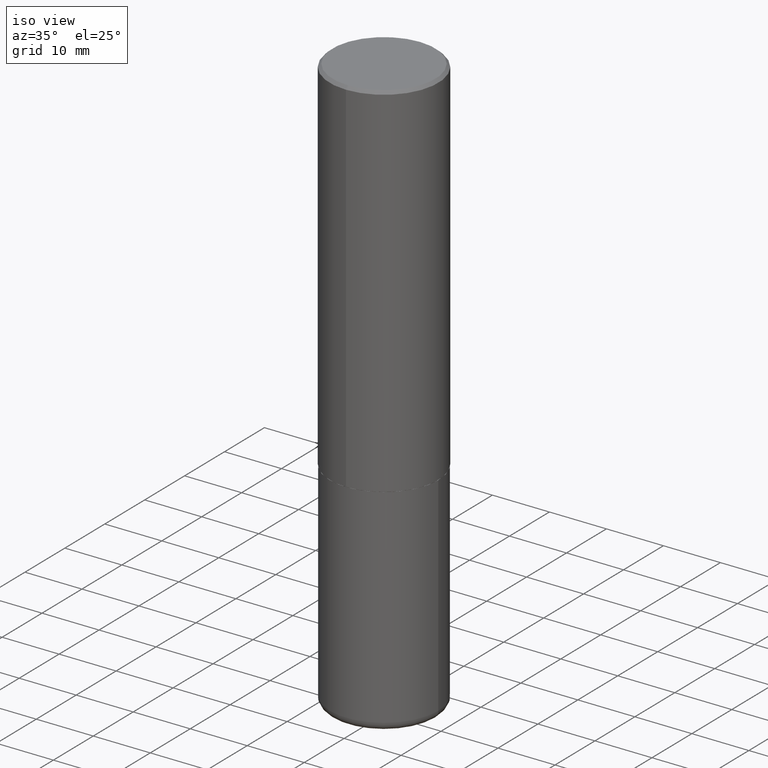
[diagram: clean part render]
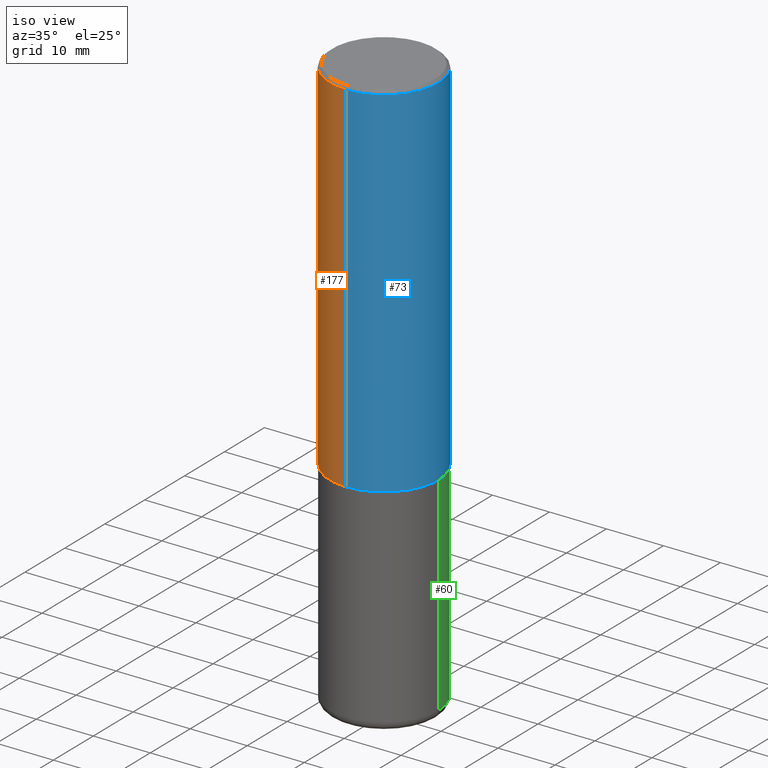
[diagram: same view with three faces highlighted in distinct colors, each labeled with its STEP entity id]
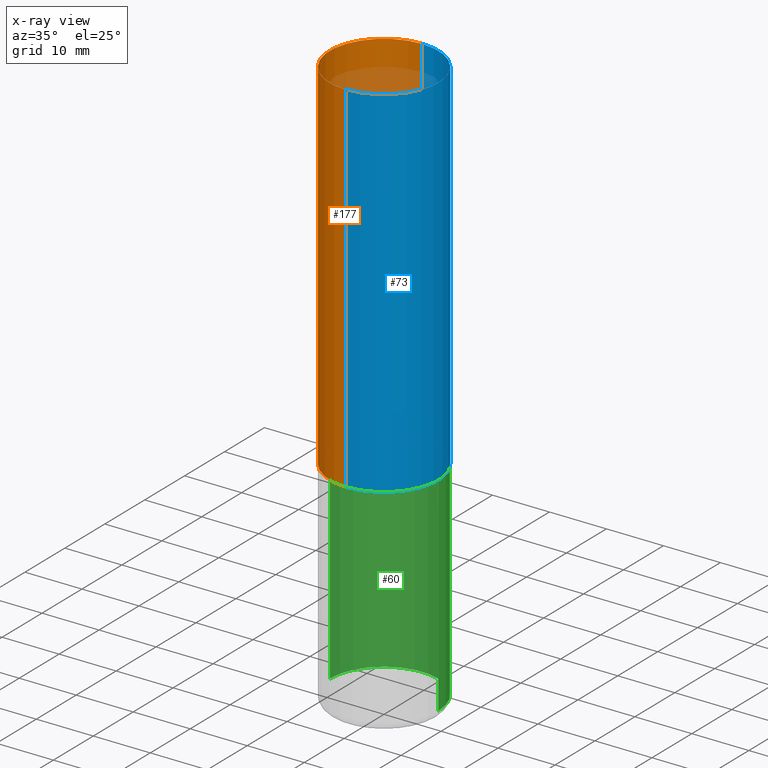
[diagram: x-ray of the same camera — body ghosted, the three highlighted faces saturated]
A machine part, iso view with three faces highlighted in distinct colors.
The next image is the same camera in x-ray (body ghosted, the three faces saturated) — at least one of them is partly hidden behind the body in this view.
Their STEP definitions:

[orange] entity #177 — the highlighted cylindrical surface (partial cylindrical patch) has radius 9.525 mm, axis along (-0, 0, 1).
#12 = CIRCLE ( 'NONE', #53, 0.3750000000000000555 ) ;
#13 = DIRECTION ( 'NONE',  ( -2.444946167972934928E-29, 3.492229786509738161E-15, 1.000000000000000000 ) ) ;
#14 = DIRECTION ( 'NONE',  ( -2.444946167972934928E-29, 3.492229786509738161E-15, 1.000000000000000000 ) ) ;
#30 = CARTESIAN_POINT ( 'NONE',  ( 2.664535259100376486E-15, 0.3750000000000001665, -1.309586169941152501E-15 ) ) ;
#35 = ORIENTED_EDGE ( 'NONE', *, *, #201, .F. ) ;
#36 = ORIENTED_EDGE ( 'NONE', *, *, #387, .T. ) ;
#42 = VECTOR ( 'NONE', #214, 39.37007874015748143 ) ;
#46 = CARTESIAN_POINT ( 'NONE',  ( 0.000000000000000000, 0.000000000000000000, 0.000000000000000000 ) ) ;
#53 = AXIS2_PLACEMENT_3D ( 'NONE', #56, #411, #62 ) ;
#56 = CARTESIAN_POINT ( 'NONE',  ( 4.889892335945890560E-31, -6.984459573019506053E-17, -0.02000000000000008715 ) ) ;
#62 = DIRECTION ( 'NONE',  ( -6.982962677686265922E-15, -1.000000000000000000, 3.494488891895536035E-15 ) ) ;
#81 = CYLINDRICAL_SURFACE ( 'NONE', #381, 0.3750000000000001665 ) ;
#84 = CARTESIAN_POINT ( 'NONE',  ( -2.572686749164323547E-15, -0.3750000000000001110, -0.01999999999999877570 ) ) ;
#90 = CIRCLE ( 'NONE', #302, 0.3750000000000002776 ) ;
#103 = VERTEX_POINT ( 'NONE', #238 ) ;
#112 = DIRECTION ( 'NONE',  ( -6.982962677686266711E-15, -1.000000000000000000, 2.913971193241878794E-15 ) ) ;
#128 = CARTESIAN_POINT ( 'NONE',  ( 2.618611004132350411E-15, 0.3749999999999999445, -0.02000000000000139513 ) ) ;
#134 = DIRECTION ( 'NONE',  ( -2.444946167972934928E-29, 3.492229786509738161E-15, 1.000000000000000000 ) ) ;
#162 = ORIENTED_EDGE ( 'NONE', *, *, #271, .T. ) ;
#175 = EDGE_CURVE ( 'NONE', #206, #316, #322, .T. ) ;
#177 = ADVANCED_FACE ( 'NONE', ( #269 ), #81, .T. ) ;
#191 = CARTESIAN_POINT ( 'NONE',  ( -2.618611004132351200E-15, -0.3750000000000001665, 1.309586169941152501E-15 ) ) ;
#192 = EDGE_LOOP ( 'NONE', ( #340, #36, #162, #35 ) ) ;
#201 = EDGE_CURVE ( 'NONE', #316, #395, #12, .T. ) ;
#206 = VERTEX_POINT ( 'NONE', #260 ) ;
#214 = DIRECTION ( 'NONE',  ( -2.444946167972934928E-29, 3.492229786509738161E-15, 1.000000000000000000 ) ) ;
#238 = CARTESIAN_POINT ( 'NONE',  ( -2.618611004132290852E-15, -0.3750000000000090483, -2.498999999999999222 ) ) ;
#252 = LINE ( 'NONE', #191, #42 ) ;
#260 = CARTESIAN_POINT ( 'NONE',  ( 2.664535259100408040E-15, 0.3749999999999915623, -2.499000000000001442 ) ) ;
#269 = FACE_OUTER_BOUND ( 'NONE', #192, .T. ) ;
#271 = EDGE_CURVE ( 'NONE', #103, #395, #252, .T. ) ;
#282 = DIRECTION ( 'NONE',  ( -6.982962677686266711E-15, -1.000000000000000000, 3.492229786509738556E-15 ) ) ;
#299 = CARTESIAN_POINT ( 'NONE',  ( 6.109920473764365540E-29, -8.727082236487837614E-15, -2.499000000000000110 ) ) ;
#301 = VECTOR ( 'NONE', #134, 39.37007874015748143 ) ;
#302 = AXIS2_PLACEMENT_3D ( 'NONE', #299, #14, #112 ) ;
#316 = VERTEX_POINT ( 'NONE', #128 ) ;
#322 = LINE ( 'NONE', #30, #301 ) ;
#340 = ORIENTED_EDGE ( 'NONE', *, *, #175, .F. ) ;
#381 = AXIS2_PLACEMENT_3D ( 'NONE', #46, #13, #282 ) ;
#387 = EDGE_CURVE ( 'NONE', #206, #103, #90, .T. ) ;
#395 = VERTEX_POINT ( 'NONE', #84 ) ;
#411 = DIRECTION ( 'NONE',  ( -2.444946167972934928E-29, 3.492229786509738161E-15, 1.000000000000000000 ) ) ;

[blue] entity #73 — the highlighted cylindrical surface (partial cylindrical patch) has radius 9.525 mm, axis along (-0, 0, 1).
#4 = CIRCLE ( 'NONE', #330, 0.3750000000000000555 ) ;
#8 = EDGE_CURVE ( 'NONE', #395, #316, #4, .T. ) ;
#26 = CIRCLE ( 'NONE', #76, 0.3750000000000002776 ) ;
#30 = CARTESIAN_POINT ( 'NONE',  ( 2.664535259100376486E-15, 0.3750000000000001665, -1.309586169941152501E-15 ) ) ;
#32 = EDGE_LOOP ( 'NONE', ( #132, #345, #297, #275 ) ) ;
#37 = CYLINDRICAL_SURFACE ( 'NONE', #319, 0.3750000000000001665 ) ;
#42 = VECTOR ( 'NONE', #214, 39.37007874015748143 ) ;
#47 = DIRECTION ( 'NONE',  ( -2.444946167972934928E-29, 3.492229786509738161E-15, 1.000000000000000000 ) ) ;
#73 = ADVANCED_FACE ( 'NONE', ( #230 ), #37, .T. ) ;
#76 = AXIS2_PLACEMENT_3D ( 'NONE', #143, #47, #400 ) ;
#84 = CARTESIAN_POINT ( 'NONE',  ( -2.572686749164323547E-15, -0.3750000000000001110, -0.01999999999999877570 ) ) ;
#102 = EDGE_CURVE ( 'NONE', #103, #206, #26, .T. ) ;
#103 = VERTEX_POINT ( 'NONE', #238 ) ;
#128 = CARTESIAN_POINT ( 'NONE',  ( 2.618611004132350411E-15, 0.3749999999999999445, -0.02000000000000139513 ) ) ;
#129 = DIRECTION ( 'NONE',  ( -6.982962677686265922E-15, -1.000000000000000000, 3.494488891895536035E-15 ) ) ;
#132 = ORIENTED_EDGE ( 'NONE', *, *, #102, .T. ) ;
#134 = DIRECTION ( 'NONE',  ( -2.444946167972934928E-29, 3.492229786509738161E-15, 1.000000000000000000 ) ) ;
#136 = DIRECTION ( 'NONE',  ( -2.444946167972934928E-29, 3.492229786509738161E-15, 1.000000000000000000 ) ) ;
#143 = CARTESIAN_POINT ( 'NONE',  ( 6.109920473764365540E-29, -8.727082236487837614E-15, -2.499000000000000110 ) ) ;
#175 = EDGE_CURVE ( 'NONE', #206, #316, #322, .T. ) ;
#191 = CARTESIAN_POINT ( 'NONE',  ( -2.618611004132351200E-15, -0.3750000000000001665, 1.309586169941152501E-15 ) ) ;
#206 = VERTEX_POINT ( 'NONE', #260 ) ;
#214 = DIRECTION ( 'NONE',  ( -2.444946167972934928E-29, 3.492229786509738161E-15, 1.000000000000000000 ) ) ;
#230 = FACE_OUTER_BOUND ( 'NONE', #32, .T. ) ;
#238 = CARTESIAN_POINT ( 'NONE',  ( -2.618611004132290852E-15, -0.3750000000000090483, -2.498999999999999222 ) ) ;
#252 = LINE ( 'NONE', #191, #42 ) ;
#260 = CARTESIAN_POINT ( 'NONE',  ( 2.664535259100408040E-15, 0.3749999999999915623, -2.499000000000001442 ) ) ;
#271 = EDGE_CURVE ( 'NONE', #103, #395, #252, .T. ) ;
#272 = DIRECTION ( 'NONE',  ( -2.444946167972934928E-29, 3.492229786509738161E-15, 1.000000000000000000 ) ) ;
#275 = ORIENTED_EDGE ( 'NONE', *, *, #271, .F. ) ;
#297 = ORIENTED_EDGE ( 'NONE', *, *, #8, .F. ) ;
#301 = VECTOR ( 'NONE', #134, 39.37007874015748143 ) ;
#316 = VERTEX_POINT ( 'NONE', #128 ) ;
#319 = AXIS2_PLACEMENT_3D ( 'NONE', #333, #272, #391 ) ;
#322 = LINE ( 'NONE', #30, #301 ) ;
#330 = AXIS2_PLACEMENT_3D ( 'NONE', #414, #136, #129 ) ;
#333 = CARTESIAN_POINT ( 'NONE',  ( 0.000000000000000000, 0.000000000000000000, 0.000000000000000000 ) ) ;
#345 = ORIENTED_EDGE ( 'NONE', *, *, #175, .T. ) ;
#391 = DIRECTION ( 'NONE',  ( -6.982962677686266711E-15, -1.000000000000000000, 3.492229786509738556E-15 ) ) ;
#395 = VERTEX_POINT ( 'NONE', #84 ) ;
#400 = DIRECTION ( 'NONE',  ( -6.982962677686266711E-15, -1.000000000000000000, 2.913971193241878794E-15 ) ) ;
#414 = CARTESIAN_POINT ( 'NONE',  ( 4.889892335945890560E-31, -6.984459573019506053E-17, -0.02000000000000008715 ) ) ;

[green] entity #60 — the highlighted cylindrical surface (partial cylindrical patch) has radius 9.525 mm, axis along (-0, 0, 1).
#11 = FACE_OUTER_BOUND ( 'NONE', #92, .T. ) ;
#29 = LINE ( 'NONE', #99, #371 ) ;
#40 = CARTESIAN_POINT ( 'NONE',  ( -0.3750000000000000555, -8.578034651974553781E-15, -2.500000000000000000 ) ) ;
#51 = ORIENTED_EDGE ( 'NONE', *, *, #118, .T. ) ;
#60 = ADVANCED_FACE ( 'NONE', ( #11 ), #401, .T. ) ;
#61 = DIRECTION ( 'NONE',  ( 1.000000000000000000, -6.982962677686264344E-15, 0.000000000000000000 ) ) ;
#79 = DIRECTION ( 'NONE',  ( 1.000000000000000000, -6.982962677686266711E-15, 0.000000000000000000 ) ) ;
#92 = EDGE_LOOP ( 'NONE', ( #51, #332, #343, #363 ) ) ;
#95 = CARTESIAN_POINT ( 'NONE',  ( 0.3750000000000000555, -1.134731435124021338E-14, -2.500000000000000000 ) ) ;
#99 = CARTESIAN_POINT ( 'NONE',  ( -0.3750000000000000555, 2.664535259100376091E-15, -1.844600658845589598E-29 ) ) ;
#111 = CIRCLE ( 'NONE', #237, 0.3750000000000000555 ) ;
#118 = EDGE_CURVE ( 'NONE', #135, #274, #183, .T. ) ;
#124 = CARTESIAN_POINT ( 'NONE',  ( 0.000000000000000000, 0.000000000000000000, 0.000000000000000000 ) ) ;
#125 = DIRECTION ( 'NONE',  ( -2.445468806185136877E-29, 3.491481338843145188E-15, 1.000000000000000000 ) ) ;
#135 = VERTEX_POINT ( 'NONE', #305 ) ;
#139 = VERTEX_POINT ( 'NONE', #40 ) ;
#170 = AXIS2_PLACEMENT_3D ( 'NONE', #338, #178, #79 ) ;
#178 = DIRECTION ( 'NONE',  ( -2.445468806185136597E-29, 3.491481338843145583E-15, 1.000000000000000000 ) ) ;
#183 = CIRCLE ( 'NONE', #170, 0.3750000000000000555 ) ;
#190 = EDGE_CURVE ( 'NONE', #274, #139, #29, .T. ) ;
#237 = AXIS2_PLACEMENT_3D ( 'NONE', #279, #261, #61 ) ;
#243 = AXIS2_PLACEMENT_3D ( 'NONE', #124, #255, #317 ) ;
#255 = DIRECTION ( 'NONE',  ( -2.445468806185136597E-29, 3.491481338843145583E-15, 1.000000000000000000 ) ) ;
#261 = DIRECTION ( 'NONE',  ( -2.445468806185136597E-29, 3.491481338843145583E-15, 1.000000000000000000 ) ) ;
#274 = VERTEX_POINT ( 'NONE', #349 ) ;
#276 = VECTOR ( 'NONE', #125, 39.37007874015748143 ) ;
#279 = CARTESIAN_POINT ( 'NONE',  ( 6.113672015462842613E-29, -8.728703347107864943E-15, -2.500000000000000000 ) ) ;
#283 = CARTESIAN_POINT ( 'NONE',  ( 0.3750000000000000555, -2.618611004132350016E-15, 1.828566290923476203E-29 ) ) ;
#293 = EDGE_CURVE ( 'NONE', #135, #311, #409, .T. ) ;
#305 = CARTESIAN_POINT ( 'NONE',  ( 0.3750000000000001110, -1.637504747917434403E-14, -3.939999999999999947 ) ) ;
#311 = VERTEX_POINT ( 'NONE', #95 ) ;
#317 = DIRECTION ( 'NONE',  ( 1.000000000000000000, -6.982962677686265922E-15, 4.876176775795935793E-29 ) ) ;
#328 = EDGE_CURVE ( 'NONE', #311, #139, #111, .T. ) ;
#332 = ORIENTED_EDGE ( 'NONE', *, *, #190, .T. ) ;
#338 = CARTESIAN_POINT ( 'NONE',  ( 9.635147096369438236E-29, -1.375643647504199401E-14, -3.939999999999999947 ) ) ;
#343 = ORIENTED_EDGE ( 'NONE', *, *, #328, .F. ) ;
#349 = CARTESIAN_POINT ( 'NONE',  ( -0.3750000000000001110, -1.109190121594161832E-14, -3.939999999999999947 ) ) ;
#351 = DIRECTION ( 'NONE',  ( -2.445468806185136877E-29, 3.491481338843145188E-15, 1.000000000000000000 ) ) ;
#363 = ORIENTED_EDGE ( 'NONE', *, *, #293, .F. ) ;
#371 = VECTOR ( 'NONE', #351, 39.37007874015748143 ) ;
#401 = CYLINDRICAL_SURFACE ( 'NONE', #243, 0.3750000000000000555 ) ;
#409 = LINE ( 'NONE', #283, #276 ) ;